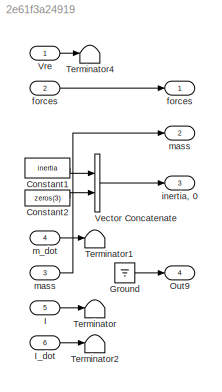
MODEL slx_2e61f3a24919
KIND model
CONFIG AbsTol = auto
CONFIG EnableMultiTasking = off
CONFIG FixedStep = auto
CONFIG MaxStep = auto
CONFIG MinStep = auto
CONFIG RelTol = 1e-3
CONFIG SampleTimeConstraint = Unconstrained
CONFIG SolverName = VariableStepAuto
CONFIG StartTime = 0.0
CONFIG StopTime = 10.0
BLOCK [Constant] Constant1
  OutDataTypeStr = Inherit: Inherit via back propagation
  Value = inertia
BLOCK [Constant] Constant2
  Value = zeros(3)
BLOCK [Ground] Ground
BLOCK [Inport] I
  OutDataTypeStr = double
  Port = 5
BLOCK [Inport] I_dot
  OutDataTypeStr = double
  Port = 6
BLOCK [Outport] Out9
  Port = 4
  VectorParamsAs1DForOutWhenUnconnected = off
BLOCK [Terminator] Terminator
BLOCK [Terminator] Terminator1
BLOCK [Terminator] Terminator2
BLOCK [Terminator] Terminator4
BLOCK [Concatenate] Vector Concatenate
  Mode = Multidimensional array
  Ports = [2, 1]
BLOCK [Inport] Vre
BLOCK [Inport] forces
  Port = 2
BLOCK [Outport] forces 
  VectorParamsAs1DForOutWhenUnconnected = off
BLOCK [Outport] inertia, 0
  Port = 3
  VectorParamsAs1DForOutWhenUnconnected = off
BLOCK [Inport] m_dot
  OutDataTypeStr = double
  Port = 4
BLOCK [Outport] mass
  Port = 2
  VectorParamsAs1DForOutWhenUnconnected = off
BLOCK [Inport] mass 
  Port = 3
LINE Constant1:1 -> Vector Concatenate:1
LINE Constant2:1 -> Vector Concatenate:2
LINE Ground:1 -> Out9:1
LINE I:1 -> Terminator:1
LINE I_dot:1 -> Terminator2:1
LINE Vector Concatenate:1 -> inertia, 0:1
LINE Vre:1 -> Terminator4:1
LINE forces:1 -> forces :1
LINE m_dot:1 -> Terminator1:1
LINE mass :1 -> mass:1
